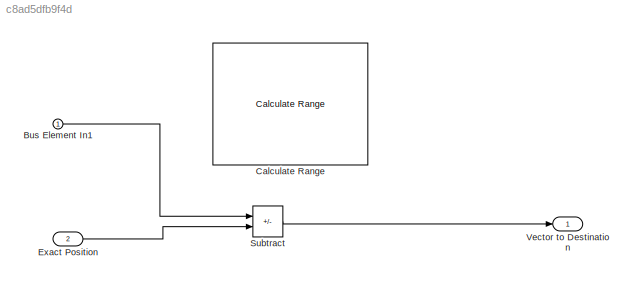
MODEL slx_c8ad5dfb9f4d
KIND model
CONFIG AbsTol = auto
CONFIG EnableMultiTasking = off
CONFIG FixedStep = auto
CONFIG MaxStep = auto
CONFIG MinStep = auto
CONFIG RelTol = 1e-3
CONFIG SampleTimeConstraint = Unconstrained
CONFIG SolverName = VariableStepAuto
CONFIG StartTime = 0.0
CONFIG StopTime = 10.0
BLOCK [Inport] Bus Element In1
BLOCK [Reference] Calculate Range  REF=aerolibguid/Calculate
Range
  Ports = [2, 1]
  SourceBlock = aerolibguid/Calculate\nRange
  SourceProductBaseCode = AE
  SourceType = Calculate Range
BLOCK [Inport] Exact Position
  Port = 2
BLOCK [Sum] Subtract
  IconShape = rectangular
  Inputs = +-
  Ports = [2, 1]
BLOCK [Outport] Vector to Destination
LINE Bus Element In1:1 -> Subtract:1
LINE Exact Position:1 -> Subtract:2
LINE Subtract:1 -> Vector to Destination:1
